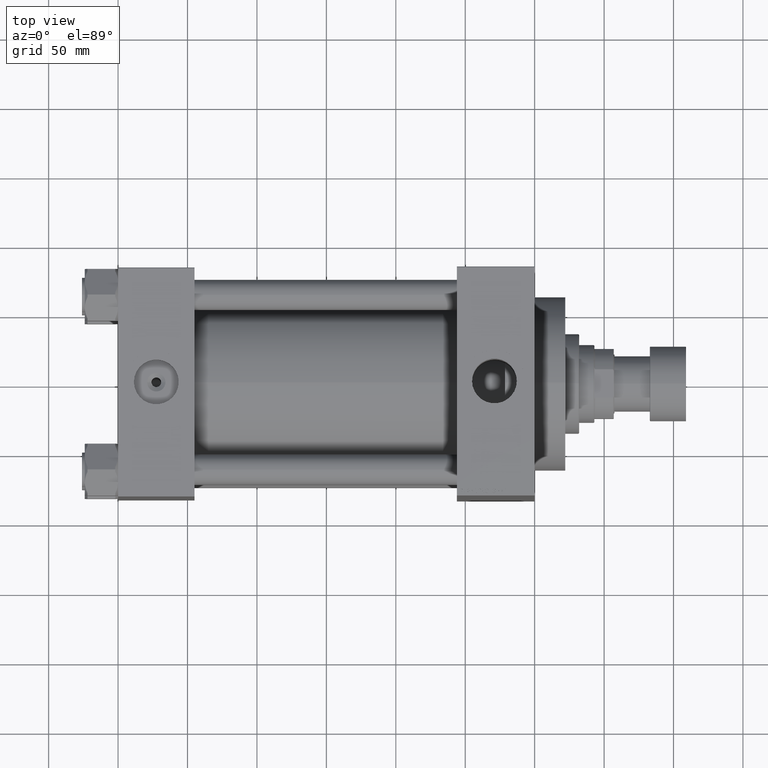
[diagram: clean part render]
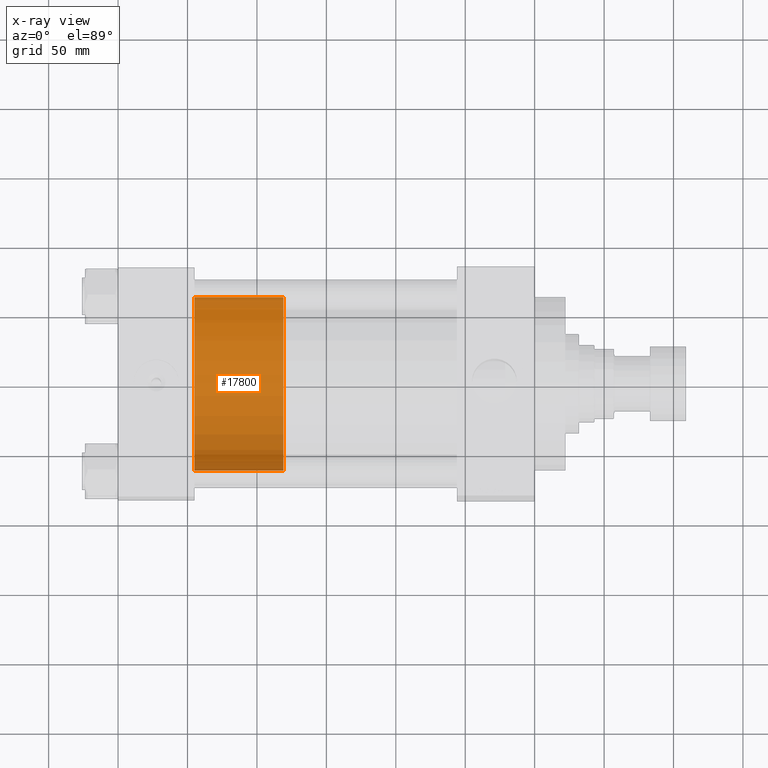
[diagram: x-ray — body ghosted, one internal face saturated and labeled with its STEP entity id]
A machine part, top view, then the same camera in x-ray: the body is ghosted and one INTERNAL B-rep face — a face not visible from any outside direction — is saturated and labeled: STEP entity #17800.
In plain terms, the highlighted cylindrical surface (partial cylindrical patch) has radius 62.5 mm, axis along (-1, 0, 0).
Its self-contained STEP definition (entity closure, byte-faithful):
#325 = LINE ( 'NONE', #25638, #24823 ) ;
#996 = DIRECTION ( 'NONE',  ( 1.000000000000000000, 0.000000000000000000, 0.000000000000000000 ) ) ;
#1480 = AXIS2_PLACEMENT_3D ( 'NONE', #18878, #18165, #29376 ) ;
#3323 = DIRECTION ( 'NONE',  ( -0.000000000000000000, -0.000000000000000000, -1.000000000000000000 ) ) ;
#4274 = CARTESIAN_POINT ( 'NONE',  ( -62.50000000000000000, 0.000000000000000000, 64.00000000000000000 ) ) ;
#4324 = DIRECTION ( 'NONE',  ( 1.000000000000000000, 0.000000000000000000, 0.000000000000000000 ) ) ;
#4995 = VERTEX_POINT ( 'NONE', #38548 ) ;
#7566 = VERTEX_POINT ( 'NONE', #4274 ) ;
#8919 = CIRCLE ( 'NONE', #25886, 62.50000000000000000 ) ;
#9232 = AXIS2_PLACEMENT_3D ( 'NONE', #16798, #16557, #996 ) ;
#10585 = VERTEX_POINT ( 'NONE', #36967 ) ;
#14378 = EDGE_CURVE ( 'NONE', #7566, #33163, #325, .T. ) ;
#15204 = EDGE_CURVE ( 'NONE', #10585, #4995, #18406, .T. ) ;
#15465 = CIRCLE ( 'NONE', #9232, 62.50000000000000000 ) ;
#15548 = EDGE_CURVE ( 'NONE', #10585, #7566, #15465, .T. ) ;
#16557 = DIRECTION ( 'NONE',  ( 0.000000000000000000, 0.000000000000000000, 1.000000000000000000 ) ) ;
#16798 = CARTESIAN_POINT ( 'NONE',  ( 0.000000000000000000, 0.000000000000000000, 64.00000000000000000 ) ) ;
#17800 = ADVANCED_FACE ( 'NONE', ( #25712 ), #26196, .T. ) ;
#18165 = DIRECTION ( 'NONE',  ( -0.000000000000000000, -0.000000000000000000, -1.000000000000000000 ) ) ;
#18406 = LINE ( 'NONE', #47637, #42766 ) ;
#18878 = CARTESIAN_POINT ( 'NONE',  ( 0.000000000000000000, 0.000000000000000000, 64.00000000000000000 ) ) ;
#19156 = CARTESIAN_POINT ( 'NONE',  ( 0.000000000000000000, 0.000000000000000000, 0.000000000000000000 ) ) ;
#21619 = CARTESIAN_POINT ( 'NONE',  ( -62.50000000000000000, 0.000000000000000000, 0.000000000000000000 ) ) ;
#23291 = DIRECTION ( 'NONE',  ( 0.000000000000000000, 0.000000000000000000, 1.000000000000000000 ) ) ;
#24823 = VECTOR ( 'NONE', #33199, 1000.000000000000000 ) ;
#25638 = CARTESIAN_POINT ( 'NONE',  ( -62.50000000000000000, 0.000000000000000000, 64.00000000000000000 ) ) ;
#25712 = FACE_OUTER_BOUND ( 'NONE', #41784, .T. ) ;
#25886 = AXIS2_PLACEMENT_3D ( 'NONE', #19156, #23291, #4324 ) ;
#26196 = CYLINDRICAL_SURFACE ( 'NONE', #1480, 62.50000000000000000 ) ;
#27887 = ORIENTED_EDGE ( 'NONE', *, *, #15204, .T. ) ;
#29376 = DIRECTION ( 'NONE',  ( -1.000000000000000000, 0.000000000000000000, 0.000000000000000000 ) ) ;
#31543 = ORIENTED_EDGE ( 'NONE', *, *, #46781, .T. ) ;
#33163 = VERTEX_POINT ( 'NONE', #21619 ) ;
#33199 = DIRECTION ( 'NONE',  ( -0.000000000000000000, -0.000000000000000000, -1.000000000000000000 ) ) ;
#36967 = CARTESIAN_POINT ( 'NONE',  ( 62.50000000000000000, 7.654042494670957804E-15, 64.00000000000000000 ) ) ;
#38548 = CARTESIAN_POINT ( 'NONE',  ( 62.50000000000000000, 7.654042494670957804E-15, 0.000000000000000000 ) ) ;
#41267 = ORIENTED_EDGE ( 'NONE', *, *, #15548, .F. ) ;
#41784 = EDGE_LOOP ( 'NONE', ( #41267, #27887, #31543, #42105 ) ) ;
#42105 = ORIENTED_EDGE ( 'NONE', *, *, #14378, .F. ) ;
#42766 = VECTOR ( 'NONE', #3323, 1000.000000000000000 ) ;
#46781 = EDGE_CURVE ( 'NONE', #4995, #33163, #8919, .T. ) ;
#47637 = CARTESIAN_POINT ( 'NONE',  ( 62.50000000000000000, 7.654042494670957804E-15, 64.00000000000000000 ) ) ;